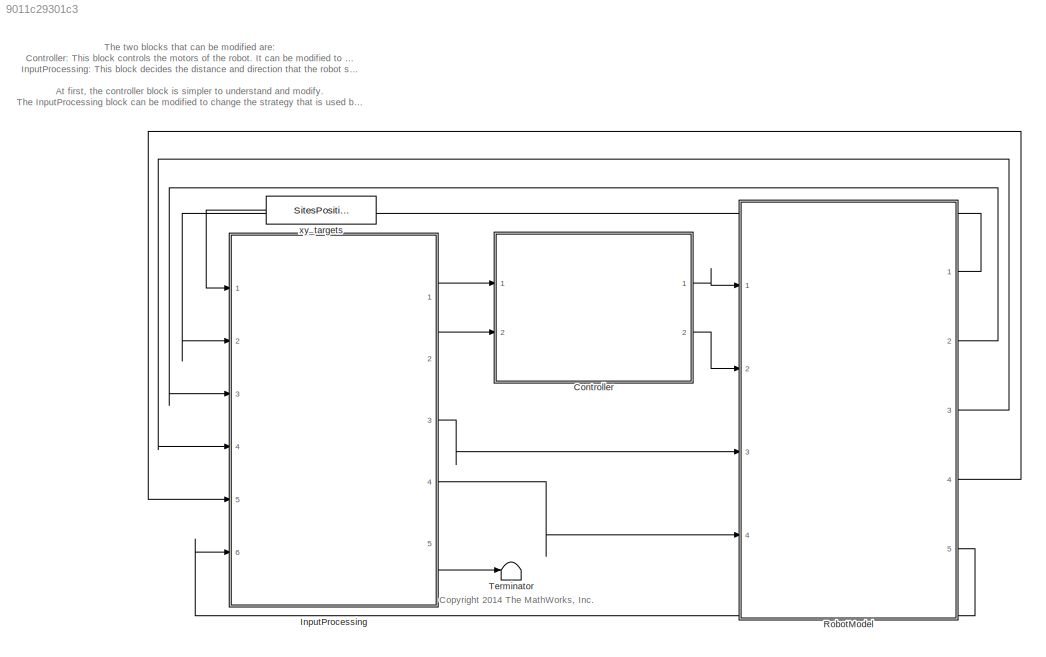
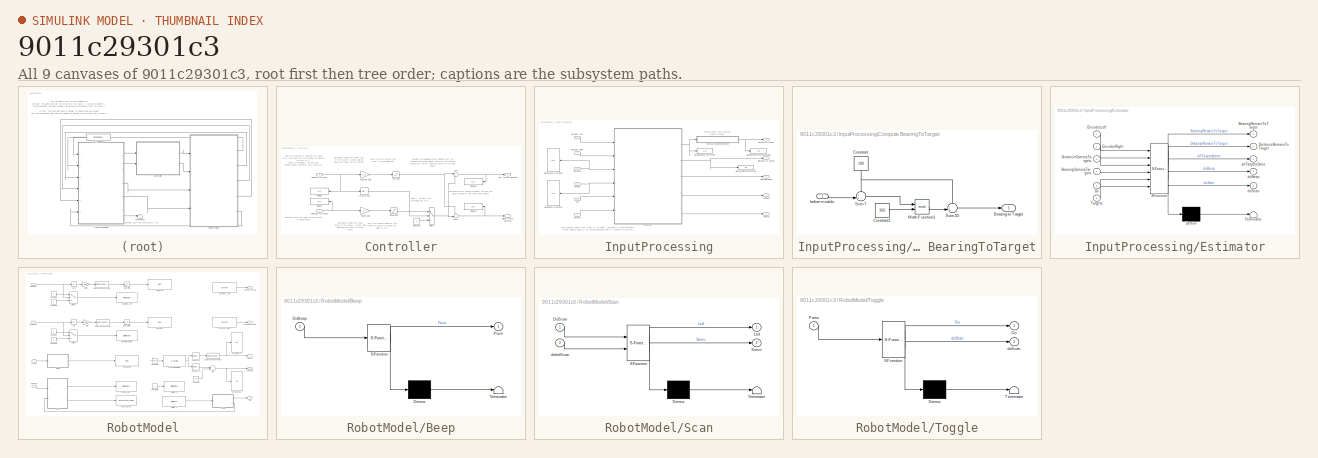
[diagram: thumbnail index - all 9 canvases of the model, root first then tree order]
MODEL slx_9011c29301c3
KIND model
CONFIG InitFcn = close('all','force');\n
CONFIG PostLoadFcn = loadRobotParameters\n\nallotedRunTime = 3*60; % [sec] Time allowed for run\n\n% starting parameters\n% The timer starts once the robot has moved a certain distance from the\n% starting point\nstartPos = [50 50]; % [cm]\nstartingRadius = 10; % [cm]\n\n% Target parameters\ntargetBoundaryRadius = 7; % [cm] radius considered at location\nstatTimeReq = 2.5; % [sec] minimum time robot must be at location\n
CONFIG StartFcn = %reset(SimDisplay.getInstance());
BLOCK [SubSystem] Controller
  Ports = [2, 2]
  RequestExecContextInheritance = off
  TreatAsAtomicUnit = on
BLOCK [Inport] Controller/Bearing to target
  IconDisplay = Port number
  OutDataTypeStr = single
  SamplingMode = Sample based
  SignalType = real
BLOCK [Constant] Controller/Constant
  OutDataTypeStr = single
  Value = 0
BLOCK [Display] Controller/Display
  Decimation = 1
  Ports = [1]
BLOCK [Display] Controller/Display1
  Decimation = 1
  Ports = [1]
BLOCK [Display] Controller/Display2
  Decimation = 1
  Ports = [1]
BLOCK [Display] Controller/Display3
  Decimation = 1
  Ports = [1]
BLOCK [Inport] Controller/Distance to target
  IconDisplay = Port number
  Port = 2
  PortDimensions = 1
  SampleTime = Ts
  SamplingMode = Sample based
  SignalType = real
BLOCK [Reference] Controller/Interval Test  REF=simulink/Logic and Bit
Operations/Interval Test
  AttributesFormatString = Upper = %<uplimit>\nLower = %<lowlimit>
  IntervalClosedLeft = on
  IntervalClosedRight = on
  OutDataTypeStr = boolean
  Ports = [1, 1]
  SourceBlock = simulink/Logic and Bit\nOperations/Interval Test
  SourceType = Interval Test
  lowlimit = -25
  uplimit = 25
BLOCK [Outport] Controller/Left Motor Demand
  IconDisplay = Port number
  OutDataTypeStr = single
BLOCK [Outport] Controller/Right Motor Demand
  IconDisplay = Port number
  OutDataTypeStr = single
  Port = 2
BLOCK [Gain] Controller/Speed gain
  Gain = 3
  OutDataTypeStr = Inherit: Inherit via internal rule
  ParamDataTypeStr = Inherit: Inherit via internal rule
  SaturateOnIntegerOverflow = off
BLOCK [Saturate] Controller/Speed limit
  AttributesFormatString = Upper = %<UpperLimit>\nLower = %<LowerLimit>
  InputPortMap = u0
  LowerLimit = 0
  Ports = [1, 1]
  UpperLimit = 50
BLOCK [Gain] Controller/Steering gain
  Gain = 1.5
  OutDataTypeStr = Inherit: Inherit via internal rule
  ParamDataTypeStr = Inherit: Inherit via internal rule
  SaturateOnIntegerOverflow = off
BLOCK [Sum] Controller/Sum
  IconShape = round
  InputSameDT = off
  Inputs = |-+
  OutDataTypeStr = Inherit: Inherit via internal rule
  Ports = [2, 1]
  SaturateOnIntegerOverflow = off
BLOCK [Sum] Controller/Sum1
  IconShape = round
  InputSameDT = off
  Inputs = ++|
  OutDataTypeStr = Inherit: Inherit via internal rule
  Ports = [2, 1]
  SaturateOnIntegerOverflow = off
BLOCK [Switch] Controller/Switch
  InputSameDT = off
  SaturateOnIntegerOverflow = off
  Threshold = 1
BLOCK [Saturate] Controller/Turn limit
  AttributesFormatString = Upper = %<UpperLimit>\nLower = %<LowerLimit>
  InputPortMap = u0
  LowerLimit = -50
  Ports = [1, 1]
  UpperLimit = 50
BLOCK [SubSystem] InputProcessing
  Ports = [6, 5]
  RequestExecContextInheritance = off
BLOCK [Outport] InputProcessing/Bearing to Target
  IconDisplay = Port number
  SampleTime = Ts
BLOCK [Display] InputProcessing/BearingTo All Targets
  Decimation = 1
  Ports = [1]
BLOCK [Display] InputProcessing/BearingToCurrentTarget
  Decimation = 1
  Ports = [1]
BLOCK [Display] InputProcessing/BearingToCurrentTargetDeg
  Decimation = 1
  Ports = [1]
BLOCK [SubSystem] InputProcessing/Compute BearingToTarget
  Ports = [1, 1]
  RequestExecContextInheritance = off
BLOCK [Outport] InputProcessing/Compute BearingToTarget/Bearing to Target
  IconDisplay = Port number
  SampleTime = Ts
BLOCK [Constant] InputProcessing/Compute BearingToTarget/Constant
  OutDataTypeStr = Inherit: Inherit via back propagation
  Value = 180
BLOCK [Constant] InputProcessing/Compute BearingToTarget/Constant1
  OutDataTypeStr = Inherit: Inherit via back propagation
  Value = 360
BLOCK [Math] InputProcessing/Compute BearingToTarget/Math Function1
  Operator = mod
  Ports = [2, 1]
BLOCK [Sum] InputProcessing/Compute BearingToTarget/Sum10
  IconShape = round
  InputSameDT = off
  Inputs = -+|
  OutDataTypeStr = Inherit: Inherit via internal rule
  Ports = [2, 1]
  SaturateOnIntegerOverflow = off
BLOCK [Sum] InputProcessing/Compute BearingToTarget/Sum7
  IconShape = round
  InputSameDT = off
  Inputs = ++|
  OutDataTypeStr = Inherit: Inherit via internal rule
  Ports = [2, 1]
  SaturateOnIntegerOverflow = off
BLOCK [Inport] InputProcessing/Compute BearingToTarget/before modulo
  IconDisplay = Port number
BLOCK [Outport] InputProcessing/Distance to Target
  IconDisplay = Port number
  Port = 2
BLOCK [Display] InputProcessing/DistanceRemainToTarget
  Decimation = 1
  Ports = [1]
BLOCK [Display] InputProcessing/DistanceTo All Targets
  Decimation = 1
  Ports = [1]
BLOCK [Inport] InputProcessing/Encoder Left
  IconDisplay = Port number
  Port = 2
BLOCK [Inport] InputProcessing/Encoder Right
  IconDisplay = Port number
  Port = 3
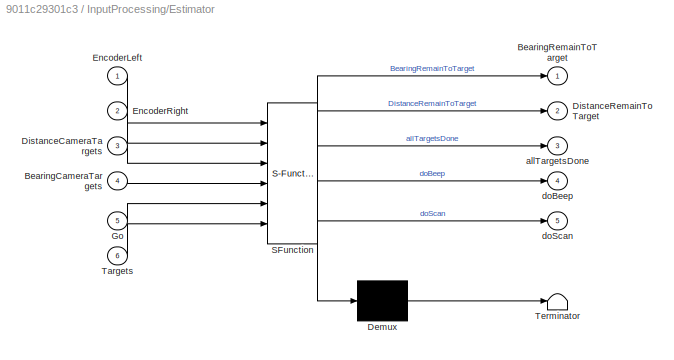
BLOCK [SubSystem] InputProcessing/Estimator
  ErrorFcn = Stateflow.Translate.translate
  PermitHierarchicalResolution = ExplicitOnly
  Ports = [6, 5]
  RequestExecContextInheritance = off
  SFBlockType = Chart
  TreatAsAtomicUnit = on
BLOCK [Demux] InputProcessing/Estimator/ Demux 
  Outputs = 1
  Ports = [1, 1]
BLOCK [S-Function] InputProcessing/Estimator/ SFunction 
  EnableBusSupport = on
  FunctionName = sf_sfun
  Parameters = AxleLength,EncRes,WheelRadius,lcam,pcam,startPos
  PortCounts = [6 6]
  Ports = [6, 6]
  Tag = Stateflow S-Function ArduinoModel 2
BLOCK [Terminator] InputProcessing/Estimator/ Terminator 
BLOCK [Inport] InputProcessing/Estimator/BearingCameraTargets
  IconDisplay = Port number
  Port = 4
BLOCK [Outport] InputProcessing/Estimator/BearingRemainToTarget
  IconDisplay = Port number
BLOCK [Inport] InputProcessing/Estimator/DistanceCameraTargets
  IconDisplay = Port number
  Port = 3
BLOCK [Outport] InputProcessing/Estimator/DistanceRemainToTarget
  IconDisplay = Port number
  Port = 2
BLOCK [Inport] InputProcessing/Estimator/EncoderLeft
  IconDisplay = Port number
BLOCK [Inport] InputProcessing/Estimator/EncoderRight
  IconDisplay = Port number
  Port = 2
BLOCK [Inport] InputProcessing/Estimator/Go
  IconDisplay = Port number
  Port = 5
BLOCK [Inport] InputProcessing/Estimator/Targets
  IconDisplay = Port number
  Port = 6
BLOCK [Outport] InputProcessing/Estimator/allTargetsDone
  IconDisplay = Port number
  Port = 3
BLOCK [Outport] InputProcessing/Estimator/doBeep
  IconDisplay = Port number
  Port = 4
BLOCK [Outport] InputProcessing/Estimator/doScan
  IconDisplay = Port number
  Port = 5
BLOCK [Inport] InputProcessing/Go
  IconDisplay = Port number
  Port = 6
BLOCK [Inport] InputProcessing/Targets
  IconDisplay = Port number
BLOCK [Outport] InputProcessing/allTargetsDone
  IconDisplay = Port number
  Port = 5
BLOCK [Inport] InputProcessing/bearing
  IconDisplay = Port number
  Port = 5
BLOCK [Inport] InputProcessing/distance
  IconDisplay = Port number
  Port = 4
BLOCK [Outport] InputProcessing/doBeep
  IconDisplay = Port number
  Port = 3
BLOCK [Outport] InputProcessing/doScan
  IconDisplay = Port number
  Port = 4
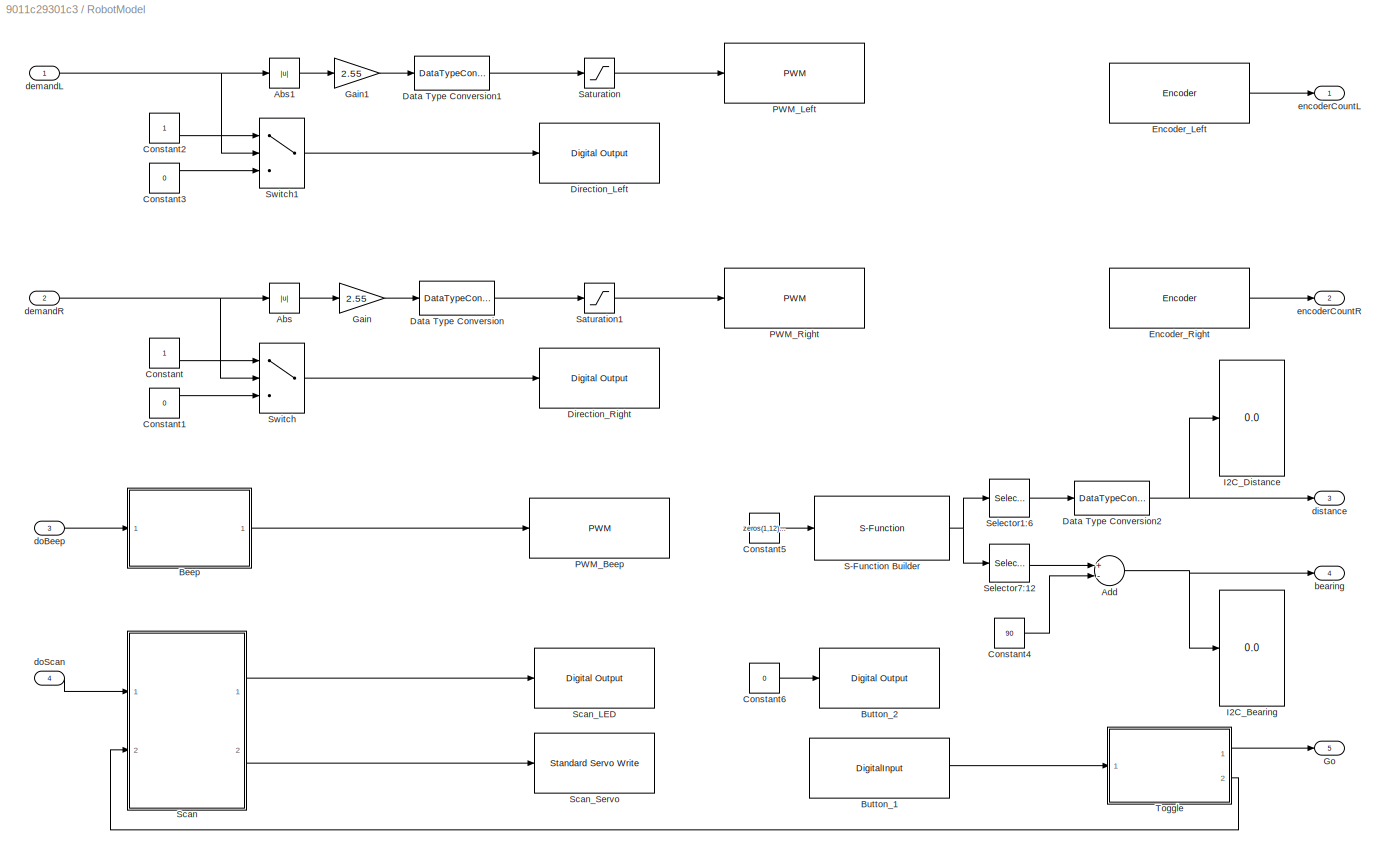
BLOCK [SubSystem] RobotModel
  Ports = [4, 5]
  RequestExecContextInheritance = off
BLOCK [Abs] RobotModel/Abs
  SaturateOnIntegerOverflow = off
BLOCK [Abs] RobotModel/Abs1
  SaturateOnIntegerOverflow = off
BLOCK [Sum] RobotModel/Add
  InputSameDT = off
  Inputs = +-
  OutDataTypeStr = int8
  Ports = [2, 1]
  SaturateOnIntegerOverflow = off
BLOCK [SubSystem] RobotModel/Beep
  ErrorFcn = Stateflow.Translate.translate
  PermitHierarchicalResolution = ExplicitOnly
  Ports = [1, 1]
  RequestExecContextInheritance = off
  SFBlockType = Chart
  TreatAsAtomicUnit = on
BLOCK [Demux] RobotModel/Beep/ Demux 
  Outputs = 1
  Ports = [1, 1]
BLOCK [S-Function] RobotModel/Beep/ SFunction 
  EnableBusSupport = on
  FunctionName = sf_sfun
  PortCounts = [1 2]
  Ports = [1, 2]
  Tag = Stateflow S-Function ArduinoModel 4
BLOCK [Terminator] RobotModel/Beep/ Terminator 
BLOCK [Inport] RobotModel/Beep/DoBeep
  IconDisplay = Port number
BLOCK [Outport] RobotModel/Beep/Pwm
  IconDisplay = Port number
BLOCK [Reference] RobotModel/Button_1  REF=arduinodue_drivers/DigitalInput  (lib defined in slx_af165bb4e225)
  Ports = [0, 1]
  SourceBlock = arduinodue_drivers/DigitalInput
  SourceType = Arduino Digital Input
  isPullUp = on
  pinNumber = 14
BLOCK [Reference] RobotModel/Button_2  REF=arduinolib/Digital Output
  Ports = [1]
  SourceBlock = arduinolib/Digital Output
  SourceType = Arduino Digital Output
  pinNumber = 15
BLOCK [Constant] RobotModel/Constant
  OutDataTypeStr = uint8
BLOCK [Constant] RobotModel/Constant1
  OutDataTypeStr = uint8
  Value = 0
BLOCK [Constant] RobotModel/Constant2
  OutDataTypeStr = uint8
BLOCK [Constant] RobotModel/Constant3
  OutDataTypeStr = uint8
  Value = 0
BLOCK [Constant] RobotModel/Constant4
  OutDataTypeStr = uint8
  Value = 90
BLOCK [Constant] RobotModel/Constant5
  OutDataTypeStr = uint8
  Value = zeros(1,12)+1
BLOCK [Constant] RobotModel/Constant6
  OutDataTypeStr = uint8
  Value = 0
BLOCK [DataTypeConversion] RobotModel/Data Type Conversion
  OutDataTypeStr = int32
  RndMeth = Floor
BLOCK [DataTypeConversion] RobotModel/Data Type Conversion1
  OutDataTypeStr = int32
  RndMeth = Floor
BLOCK [DataTypeConversion] RobotModel/Data Type Conversion2
  OutDataTypeStr = int16
  RndMeth = Floor
BLOCK [Reference] RobotModel/Direction_Left  REF=arduinolib/Digital Output
  Ports = [1]
  SourceBlock = arduinolib/Digital Output
  SourceType = Arduino Digital Output
  pinNumber = 7
BLOCK [Reference] RobotModel/Direction_Right  REF=arduinolib/Digital Output
  Ports = [1]
  SourceBlock = arduinolib/Digital Output
  SourceType = Arduino Digital Output
  pinNumber = 4
BLOCK [Reference] RobotModel/Encoder_Left  REF=arduinodue_drivers/Encoder  (lib defined in slx_af165bb4e225)
  Ports = [0, 1]
  SourceBlock = arduinodue_drivers/Encoder
  SourceType = Arduino Encoder
  pinA = 19
  pinB = 18
BLOCK [Reference] RobotModel/Encoder_Right  REF=arduinodue_drivers/Encoder  (lib defined in slx_af165bb4e225)
  Ports = [0, 1]
  SourceBlock = arduinodue_drivers/Encoder
  SourceType = Arduino Encoder
  pinA = 16
  pinB = 17
BLOCK [Gain] RobotModel/Gain
  Gain = 2.55
  OutDataTypeStr = Inherit: Inherit via internal rule
  ParamDataTypeStr = Inherit: Inherit via internal rule
  SaturateOnIntegerOverflow = off
BLOCK [Gain] RobotModel/Gain1
  Gain = 2.55
  OutDataTypeStr = Inherit: Inherit via internal rule
  ParamDataTypeStr = Inherit: Inherit via internal rule
  SaturateOnIntegerOverflow = off
BLOCK [Outport] RobotModel/Go
  IconDisplay = Port number
  Port = 5
BLOCK [Display] RobotModel/I2C_Bearing
  Decimation = 1
  Ports = [1]
BLOCK [Display] RobotModel/I2C_Distance
  Decimation = 1
  Ports = [1]
BLOCK [Reference] RobotModel/PWM_Beep  REF=arduinodue_drivers/PWM  (lib defined in slx_af165bb4e225)
  Ports = [1]
  SourceBlock = arduinodue_drivers/PWM
  SourceType = Arduino PWM
  pinNumber = 10
BLOCK [Reference] RobotModel/PWM_Left  REF=arduinodue_drivers/PWM  (lib defined in slx_af165bb4e225)
  Ports = [1]
  SourceBlock = arduinodue_drivers/PWM
  SourceType = Arduino PWM
  pinNumber = 6
BLOCK [Reference] RobotModel/PWM_Right  REF=arduinodue_drivers/PWM  (lib defined in slx_af165bb4e225)
  Ports = [1]
  SourceBlock = arduinodue_drivers/PWM
  SourceType = Arduino PWM
  pinNumber = 5
BLOCK [S-Function] RobotModel/S-Function Builder
  CopyFcn = set_param(gcbh,'LinkStatus','none')
  EnableBusSupport = off
  FunctionName = I2C_S_Function
  InitFcn = try, set_param(gcb,'FunctionName','I2C_S_Function'), end
  OpenFcn = sfunctionwizard(gcbh)
  Parameters = uint8(1)
  Ports = [1, 1]
  PreSaveFcn = try, set_param(gcb,'FunctionName','I2C_S_Function'), end
  SFunctionModules = I2C_S_Function_wrapper
BLOCK [Saturate] RobotModel/Saturation
  InputPortMap = u0
  LowerLimit = 0
  Ports = [1, 1]
  UpperLimit = 255
BLOCK [Saturate] RobotModel/Saturation1
  InputPortMap = u0
  LowerLimit = 0
  Ports = [1, 1]
  UpperLimit = 255
BLOCK [SubSystem] RobotModel/Scan
  ErrorFcn = Stateflow.Translate.translate
  PermitHierarchicalResolution = ExplicitOnly
  Ports = [2, 2]
  RequestExecContextInheritance = off
  SFBlockType = Chart
  TreatAsAtomicUnit = on
BLOCK [Demux] RobotModel/Scan/ Demux 
  Outputs = 1
  Ports = [1, 1]
BLOCK [S-Function] RobotModel/Scan/ SFunction 
  EnableBusSupport = on
  FunctionName = sf_sfun
  PortCounts = [2 3]
  Ports = [2, 3]
  Tag = Stateflow S-Function ArduinoModel 1
BLOCK [Terminator] RobotModel/Scan/ Terminator 
BLOCK [Inport] RobotModel/Scan/DoScan
  IconDisplay = Port number
BLOCK [Outport] RobotModel/Scan/Led
  IconDisplay = Port number
BLOCK [Outport] RobotModel/Scan/Servo
  IconDisplay = Port number
  Port = 2
BLOCK [Inport] RobotModel/Scan/doInitScan
  IconDisplay = Port number
  Port = 2
BLOCK [Reference] RobotModel/Scan_LED  REF=arduinolib/Digital Output
  Ports = [1]
  SourceBlock = arduinolib/Digital Output
  SourceType = Arduino Digital Output
  pinNumber = 23
BLOCK [Reference] RobotModel/Scan_Servo  REF=arduinolib/Standard Servo Write
  Ports = [1]
  SourceBlock = arduinolib/Standard Servo Write
  SourceType = Arduino Standard Servo Write
  pinNumber = 22
BLOCK [Selector] RobotModel/Selector1:6
  Indices = [1:6]
  InputPortWidth = 12
  Ports = [1, 1]
BLOCK [Selector] RobotModel/Selector7:12
  Indices = [7:12]
  InputPortWidth = 12
  Ports = [1, 1]
BLOCK [Switch] RobotModel/Switch
  Criteria = u2 > Threshold
  InputSameDT = off
  SaturateOnIntegerOverflow = off
BLOCK [Switch] RobotModel/Switch1
  Criteria = u2 > Threshold
  InputSameDT = off
  SaturateOnIntegerOverflow = off
BLOCK [SubSystem] RobotModel/Toggle
  ErrorFcn = Stateflow.Translate.translate
  PermitHierarchicalResolution = ExplicitOnly
  Ports = [1, 2]
  RequestExecContextInheritance = off
  SFBlockType = Chart
  TreatAsAtomicUnit = on
BLOCK [Demux] RobotModel/Toggle/ Demux 
  Outputs = 1
  Ports = [1, 1]
BLOCK [S-Function] RobotModel/Toggle/ SFunction 
  EnableBusSupport = on
  FunctionName = sf_sfun
  PortCounts = [1 3]
  Ports = [1, 3]
  Tag = Stateflow S-Function ArduinoModel 3
BLOCK [Terminator] RobotModel/Toggle/ Terminator 
BLOCK [Outport] RobotModel/Toggle/Go
  IconDisplay = Port number
BLOCK [Inport] RobotModel/Toggle/Press
  IconDisplay = Port number
BLOCK [Outport] RobotModel/Toggle/doScan
  IconDisplay = Port number
  Port = 2
BLOCK [Outport] RobotModel/bearing
  IconDisplay = Port number
  Port = 4
BLOCK [Inport] RobotModel/demandL
  IconDisplay = Port number
  SampleTime = 0
BLOCK [Inport] RobotModel/demandR
  IconDisplay = Port number
  Port = 2
  SampleTime = 0
BLOCK [Outport] RobotModel/distance
  IconDisplay = Port number
  Port = 3
BLOCK [Inport] RobotModel/doBeep
  IconDisplay = Port number
  Port = 3
  SampleTime = 0
BLOCK [Inport] RobotModel/doScan
  IconDisplay = Port number
  Port = 4
  SampleTime = 0
BLOCK [Outport] RobotModel/encoderCountL
  IconDisplay = Port number
  OutDataTypeStr = int32
BLOCK [Outport] RobotModel/encoderCountR
  IconDisplay = Port number
  OutDataTypeStr = int32
  Port = 2
BLOCK [Terminator] Terminator
BLOCK [Constant] xy_targets
  OutDataTypeStr = single
  Value = SitesPositions
ANNOTATION (root): <copyright redacted>
ANNOTATION (root): The two blocks that can be modified are: Controller: This block controls the motors of the robot. It can be modified to adjust the speed at which the robot will move to its indicated distance and direction. InputProcessing: This block decides the distance and direction that the robot should follow. At first, the controller block is simpler to understand and modify. The InputProcessing block can be...<+143ch>
ANNOTATION Controller: Calculate the individual motor signals from the steering and speed signals. Subtract the steering signal from the left wheel and add it to the right wheel
ANNOTATION Controller: Demanded motor speeds between -100 and 100 Values outside of this range will be capped
ANNOTATION Controller: Distance from the robot to the target in centimeters
ANNOTATION Controller: How quickly should the robot drive to the target? A larger gain will cause the robot to move faster
ANNOTATION Controller: How quickly should the robot turn to the target? A larger gain will cause the robot to turn faster
ANNOTATION Controller: If within +- 20 deg, drive. Otherwise just turn.
ANNOTATION Controller: Limit the forward speed of the robot to ensure it retains the ability to turn
ANNOTATION Controller: Limit the turn rate of the robot to avoid wheel slip.
ANNOTATION Controller: This is the number of degrees the robot must turn such that the target is in directly in front of it. Values are between -180 and 180, positive values represent a left hand turn
ANNOTATION InputProcessing: Ensure robot takes shortest angle to target.
ANNOTATION InputProcessing: The Estimator block is the "brain" of the robot. According to the information from the encoders and the camera and the target objective given by the TargetSequencing block, it chooses the direction towards which the robot will try to move.
NET Controller/Bearing to target:1 -> Controller/Display:1, Controller/Interval Test:1, Controller/Steering gain:1
LINE Controller/Constant:1 -> Controller/Switch:3
NET Controller/Distance to target:1 -> Controller/Display1:1, Controller/Speed gain:1
LINE Controller/Interval Test:1 -> Controller/Switch:2
LINE Controller/Speed gain:1 -> Controller/Speed limit:1
LINE Controller/Speed limit:1 -> Controller/Switch:1
LINE Controller/Steering gain:1 -> Controller/Turn limit:1
NET Controller/Sum1:1 -> Controller/Display3:1, Controller/Right Motor Demand:1
NET Controller/Sum:1 -> Controller/Display2:1, Controller/Left Motor Demand:1
NET Controller/Switch:1 -> Controller/Sum1:2, Controller/Sum:2
NET Controller/Turn limit:1 -> Controller/Sum1:1, Controller/Sum:1
LINE Controller:1 -> RobotModel:1
LINE Controller:2 -> RobotModel:2
LINE InputProcessing/Compute BearingToTarget/Constant1:1 -> InputProcessing/Compute BearingToTarget/Math Function1:2
NET InputProcessing/Compute BearingToTarget/Constant:1 -> InputProcessing/Compute BearingToTarget/Sum10:1, InputProcessing/Compute BearingToTarget/Sum7:1
LINE InputProcessing/Compute BearingToTarget/Math Function1:1 -> InputProcessing/Compute BearingToTarget/Sum10:2
LINE InputProcessing/Compute BearingToTarget/Sum10:1 -> InputProcessing/Compute BearingToTarget/Bearing to Target:1
LINE InputProcessing/Compute BearingToTarget/Sum7:1 -> InputProcessing/Compute BearingToTarget/Math Function1:1
LINE InputProcessing/Compute BearingToTarget/before modulo:1 -> InputProcessing/Compute BearingToTarget/Sum7:2
NET InputProcessing/Compute BearingToTarget:1 -> InputProcessing/Bearing to Target:1, InputProcessing/BearingToCurrentTargetDeg:1
LINE InputProcessing/Encoder Left:1 -> InputProcessing/Estimator:1
LINE InputProcessing/Encoder Right:1 -> InputProcessing/Estimator:2
NET InputProcessing/Estimator:1 -> InputProcessing/BearingToCurrentTarget:1, InputProcessing/Compute BearingToTarget:1
NET InputProcessing/Estimator:2 -> InputProcessing/Distance to Target:1, InputProcessing/DistanceRemainToTarget:1
LINE InputProcessing/Estimator:3 -> InputProcessing/allTargetsDone:1
LINE InputProcessing/Estimator:4 -> InputProcessing/doBeep:1
LINE InputProcessing/Estimator:5 -> InputProcessing/doScan:1
LINE InputProcessing/Go:1 -> InputProcessing/Estimator:5
LINE InputProcessing/Targets:1 -> InputProcessing/Estimator:6
NET InputProcessing/bearing:1 -> InputProcessing/BearingTo All Targets:1, InputProcessing/Estimator:4
NET InputProcessing/distance:1 -> InputProcessing/DistanceTo All Targets:1, InputProcessing/Estimator:3
LINE InputProcessing:1 -> Controller:1
LINE InputProcessing:2 -> Controller:2
LINE InputProcessing:3 -> RobotModel:3
LINE InputProcessing:4 -> RobotModel:4
LINE InputProcessing:5 -> Terminator:1
LINE RobotModel/Abs1:1 -> RobotModel/Gain1:1
LINE RobotModel/Abs:1 -> RobotModel/Gain:1
NET RobotModel/Add:1 -> RobotModel/I2C_Bearing:1, RobotModel/bearing:1
LINE RobotModel/Beep:1 -> RobotModel/PWM_Beep:1
LINE RobotModel/Button_1:1 -> RobotModel/Toggle:1
LINE RobotModel/Constant1:1 -> RobotModel/Switch:3
LINE RobotModel/Constant2:1 -> RobotModel/Switch1:1
LINE RobotModel/Constant3:1 -> RobotModel/Switch1:3
LINE RobotModel/Constant4:1 -> RobotModel/Add:2
LINE RobotModel/Constant5:1 -> RobotModel/S-Function Builder:1
LINE RobotModel/Constant6:1 -> RobotModel/Button_2:1
LINE RobotModel/Constant:1 -> RobotModel/Switch:1
LINE RobotModel/Data Type Conversion1:1 -> RobotModel/Saturation:1
NET RobotModel/Data Type Conversion2:1 -> RobotModel/I2C_Distance:1, RobotModel/distance:1
LINE RobotModel/Data Type Conversion:1 -> RobotModel/Saturation1:1
LINE RobotModel/Encoder_Left:1 -> RobotModel/encoderCountL:1
LINE RobotModel/Encoder_Right:1 -> RobotModel/encoderCountR:1
LINE RobotModel/Gain1:1 -> RobotModel/Data Type Conversion1:1
LINE RobotModel/Gain:1 -> RobotModel/Data Type Conversion:1
NET RobotModel/S-Function Builder:1 -> RobotModel/Selector1:6:1, RobotModel/Selector7:12:1
LINE RobotModel/Saturation1:1 -> RobotModel/PWM_Right:1
LINE RobotModel/Saturation:1 -> RobotModel/PWM_Left:1
LINE RobotModel/Scan:1 -> RobotModel/Scan_LED:1
LINE RobotModel/Scan:2 -> RobotModel/Scan_Servo:1
LINE RobotModel/Selector1:6:1 -> RobotModel/Data Type Conversion2:1
LINE RobotModel/Selector7:12:1 -> RobotModel/Add:1
LINE RobotModel/Switch1:1 -> RobotModel/Direction_Left:1
LINE RobotModel/Switch:1 -> RobotModel/Direction_Right:1
LINE RobotModel/Toggle:1 -> RobotModel/Go:1
LINE RobotModel/Toggle:2 -> RobotModel/Scan:2
NET RobotModel/demandL:1 -> RobotModel/Abs1:1, RobotModel/Switch1:2
NET RobotModel/demandR:1 -> RobotModel/Abs:1, RobotModel/Switch:2
LINE RobotModel/doBeep:1 -> RobotModel/Beep:1
LINE RobotModel/doScan:1 -> RobotModel/Scan:1
LINE RobotModel:1 -> InputProcessing:2
LINE RobotModel:2 -> InputProcessing:3
LINE RobotModel:3 -> InputProcessing:4
LINE RobotModel:4 -> InputProcessing:5
LINE RobotModel:5 -> InputProcessing:6
LINE xy_targets:1 -> InputProcessing:1
note: NET lines group one-source signal fan-out (src -> all destinations, sorted); 1:1 wires keep LINE
